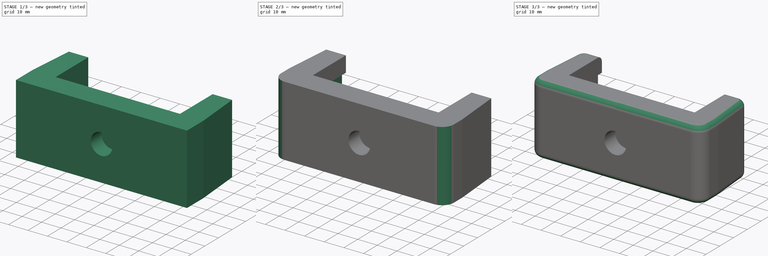
[diagram: build sequence overview — one tinted view per stage of 3, left to right]
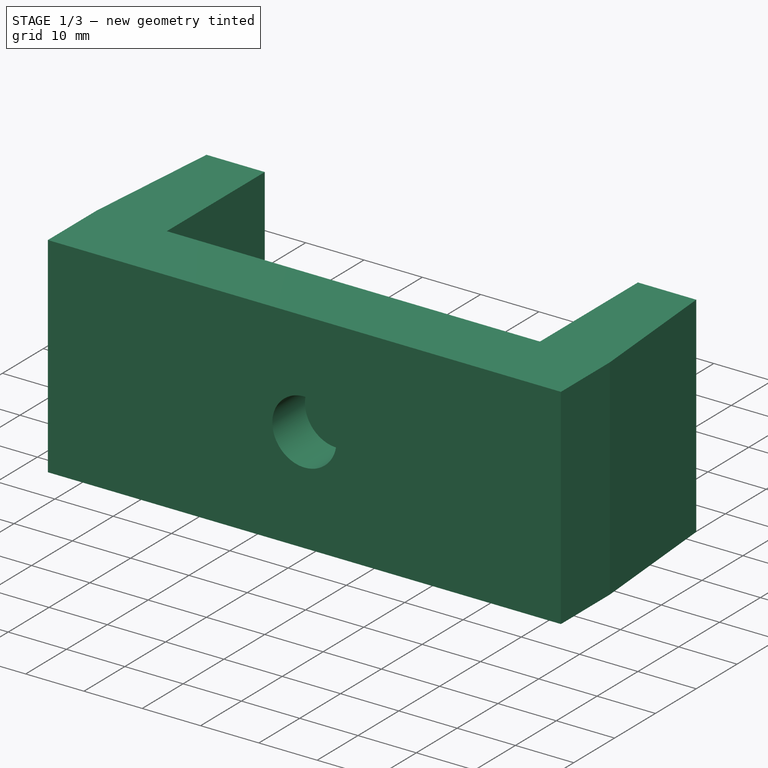
[diagram: stage 1 of 3 — iso view after this stage's code; geometry added in this stage tinted green]
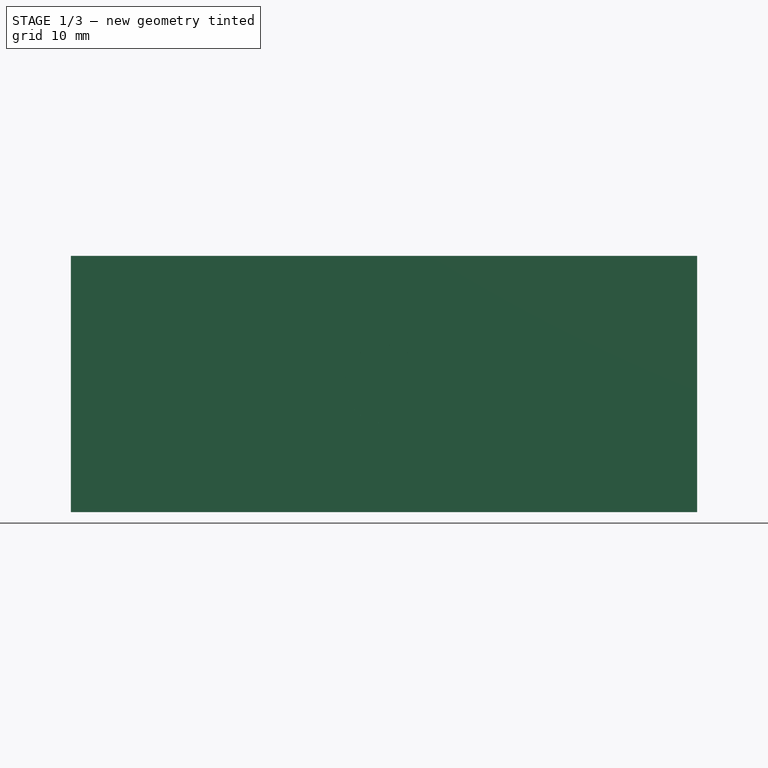
[diagram: stage 1 of 3 — front view after this stage's code; geometry added in this stage tinted green]
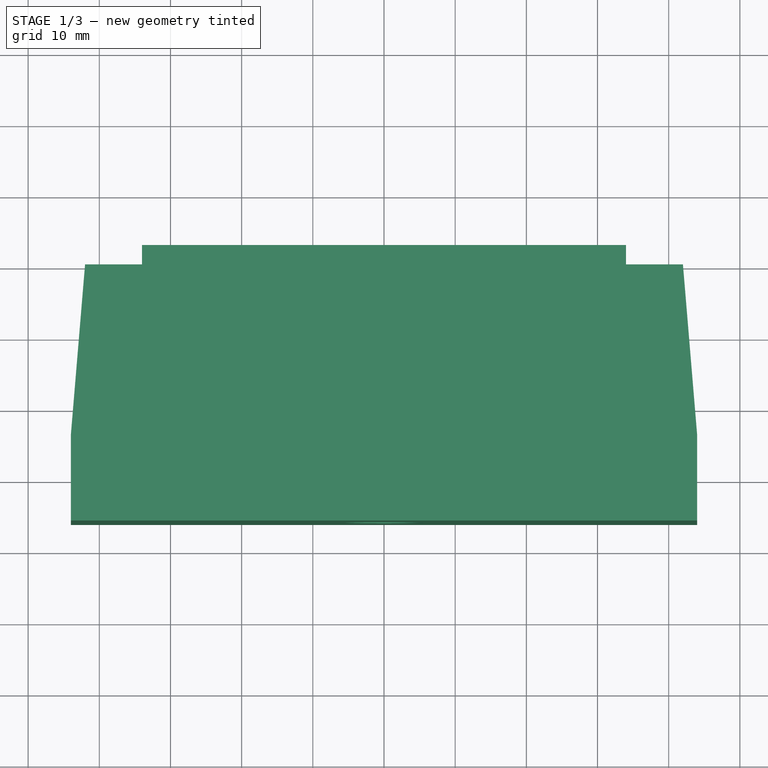
[diagram: stage 1 of 3 — top view after this stage's code; geometry added in this stage tinted green]
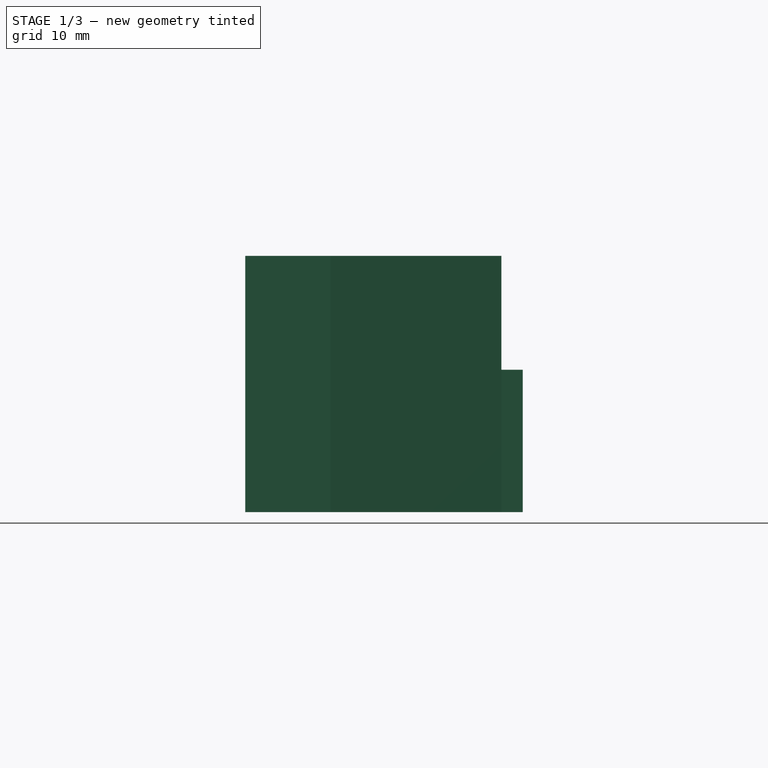
[diagram: stage 1 of 3 — right view after this stage's code; geometry added in this stage tinted green]
FCSTD DOCUMENT  (FreeCAD 0.21R33771 (Git))
Label: Base1
License: All rights reserved
LicenseURL: http://en.wikipedia.org/wiki/All_rights_reserved
objects: PartDesign::Fillet×4, Sketcher::SketchObject×3, PartDesign::Pad×2, PartDesign::Body×2, PartDesign::Pocket×1, PartDesign::Boolean×1
note: 20 computed .brp shape members not serialized (recipe doc carries the construction recipe); baked Part::Feature solids carry a one-line shape summary decoded from their .brp

FEATURE [Sketcher::SketchObject] Sketch
  FullyConstrained = true
  MapMode = 5
  Support = -> [XY_Plane]
  sketch-geometry (16):
    g0: LineSegment StartX=-30 StartY=50 StartZ=0 EndX=30 EndY=50 EndZ=0
    g1: LineSegment StartX=30 StartY=50 StartZ=0 EndX=30 EndY=-20 EndZ=0
    g2: LineSegment StartX=30 StartY=-20 StartZ=0 EndX=-30 EndY=-20 EndZ=0
    g3: LineSegment StartX=-30 StartY=-20 StartZ=0 EndX=-30 EndY=50 EndZ=0
    g4: LineSegment StartX=0 StartY=-24 StartZ=0 EndX=-32 EndY=-24 EndZ=0
    g5: LineSegment StartX=-32 StartY=-24 StartZ=0 EndX=-32 EndY=0 EndZ=0
    g6: LineSegment StartX=-32 StartY=0 StartZ=0 EndX=-42 EndY=0 EndZ=0
    g7: LineSegment StartX=-42 StartY=0 StartZ=0 EndX=-44 EndY=-24 EndZ=0
    g8: LineSegment StartX=-44 StartY=-24 StartZ=0 EndX=-44 EndY=-36 EndZ=0
    g9: LineSegment StartX=-44 StartY=-36 StartZ=0 EndX=0 EndY=-36 EndZ=0
    g10: LineSegment StartX=0 StartY=-24 StartZ=0 EndX=32 EndY=-24 EndZ=0
    g11: LineSegment StartX=32 StartY=-24 StartZ=0 EndX=32 EndY=0 EndZ=0
    g12: LineSegment StartX=32 StartY=0 StartZ=0 EndX=42 EndY=0 EndZ=0
    g13: LineSegment StartX=42 StartY=0 StartZ=0 EndX=44 EndY=-24 EndZ=0
    g14: LineSegment StartX=44 StartY=-24 StartZ=0 EndX=44 EndY=-36 EndZ=0
    g15: LineSegment StartX=44 StartY=-36 StartZ=0 EndX=0 EndY=-36 EndZ=0
  constraints (44):
    c: Coincident(g0,g1)
    c: Coincident(g1,g2)
    c: Coincident(g2,g3)
    c: Coincident(g3,g0)
    c: Horizontal(g2)
    c: Vertical(g1)
    c: Vertical(g3)
    c: Symmetric(g0,g0,g-2)
    c: DistanceY(g-1,g0) = 50
    c: DistanceX(g2,g1) = 60
    c: DistanceY(g2,g-1) = 20
    c: PointOnObject(g4,g-2)
    c: Horizontal(g4)
    c: Coincident(g5,g4)
    c: PointOnObject(g5,g-1)
    c: Vertical(g5)
    c: Coincident(g6,g5)
    c: PointOnObject(g6,g-1)
    c: Vertical(g8)
    c: PointOnObject(g9,g-2)
    c: Horizontal(g9)
    c: DistanceX(g6,g5) = 10
    c: Horizontal(g7,g4)
    c: Coincident(g8,g7)
    c: Coincident(g8,g9)
    c: DistanceX(g7,g4) = 12
    c: DistanceY(g9,g4) = 12
    c: DistanceY(g4,g-1) = 24
    c: Coincident(g6,g7)
    c: DistanceX(g5,g-1) = 32
    c: Horizontal(g10)
    c: Coincident(g11,g10)
    c: Vertical(g11)
    c: Coincident(g12,g11)
    c: Vertical(g14)
    c: Horizontal(g15)
    c: Coincident(g14,g13)
    c: Coincident(g14,g15)
    c: Coincident(g12,g13)
    c: Coincident(g10,g4)
    c: Coincident(g15,g9)
    c: Symmetric(g11,g5,g-2)
    c: Symmetric(g12,g6,g-2)
    c: Symmetric(g13,g7,g-2)
FEATURE [PartDesign::Pad] Pad
  Direction = (0,0,1)
  Length = 36
  Length2 = 10
  Profile = -> Sketch
  ReferenceAxis = -> Sketch [N_Axis]
  Type = 0
FEATURE [Sketcher::SketchObject] Sketch001
  FullyConstrained = true
  MapMode = 5
  Placement = pos=(0,-36,0) rot=(1,0,0;1.5708rad)
  Support = -> [Pad]
  sketch-geometry (1):
    g0: Circle CenterX=0 CenterY=18 CenterZ=0 NormalX=0 NormalY=0 NormalZ=1 AngleXU=0 Radius=5.5
  constraints (3):
    c: PointOnObject(g0,g-2)
    c: Radius(g0) = 5.5
    c: DistanceY(g0) = 18
FEATURE [PartDesign::Pocket] Pocket
  BaseFeature = -> Pad
  Direction = (0,1,-2e-16)
  Length = 8
  Length2 = 5
  Profile = -> Sketch001
  ReferenceAxis = -> Sketch001 [N_Axis]
  Type = 0
FEATURE [Sketcher::SketchObject] Sketch002
  FullyConstrained = true
  MapMode = 5
  Support = -> [XY_Plane001]
  sketch-geometry (4):
    g0: LineSegment StartX=-34 StartY=3 StartZ=0 EndX=34 EndY=3 EndZ=0
    g1: LineSegment StartX=34 StartY=3 StartZ=0 EndX=34 EndY=-27 EndZ=0
    g2: LineSegment StartX=34 StartY=-27 StartZ=0 EndX=-34 EndY=-27 EndZ=0
    g3: LineSegment StartX=-34 StartY=-27 StartZ=0 EndX=-34 EndY=3 EndZ=0
  constraints (11):
    c: Coincident(g0,g1)
    c: Coincident(g1,g2)
    c: Coincident(g2,g3)
    c: Coincident(g3,g0)
    c: Horizontal(g2)
    c: Vertical(g1)
    c: Vertical(g3)
    c: DistanceX(g2,g1) = 68
    c: DistanceY(g1,g0) = 30
    c: DistanceY(g2,g-1) = 27
    c: Symmetric(g0,g0,g-2)
FEATURE [PartDesign::Pad] Pad001
  Direction = (0,0,1)
  Length = 20
  Length2 = 10
  Profile = -> Sketch002
  ReferenceAxis = -> Sketch002 [N_Axis]
  Type = 0
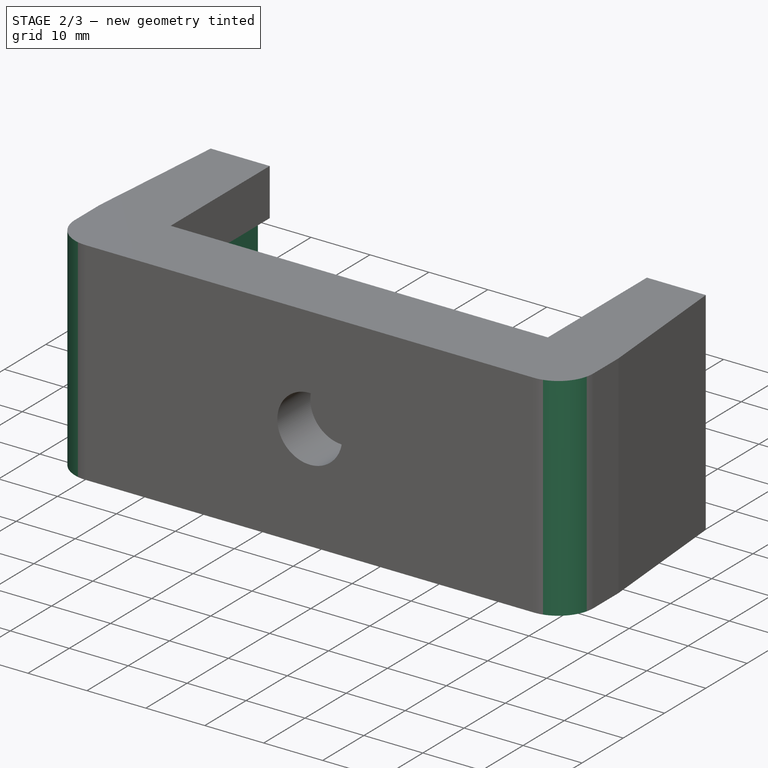
[diagram: stage 2 of 3 — iso view after this stage's code; geometry added in this stage tinted green]
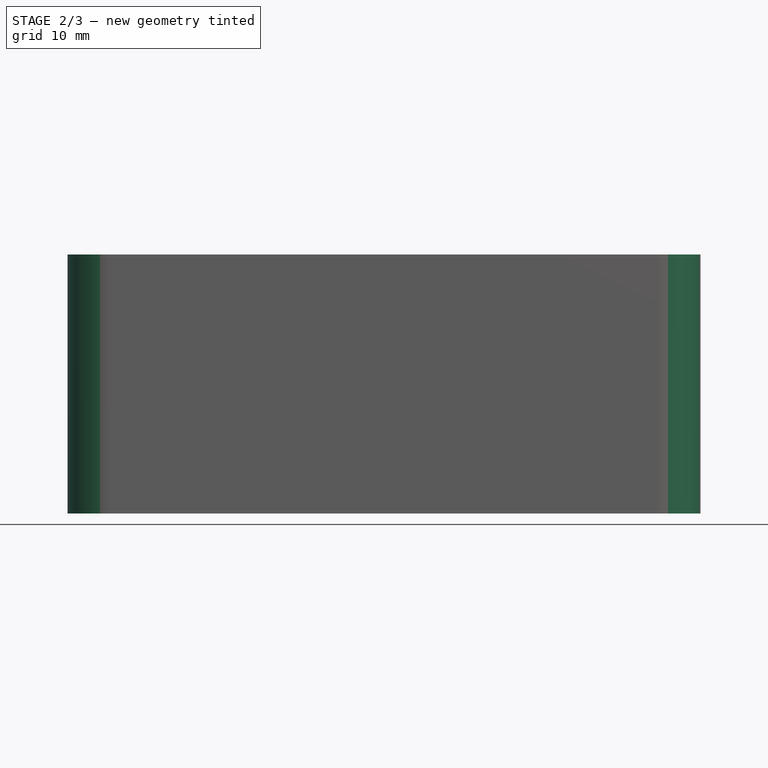
[diagram: stage 2 of 3 — front view after this stage's code; geometry added in this stage tinted green]
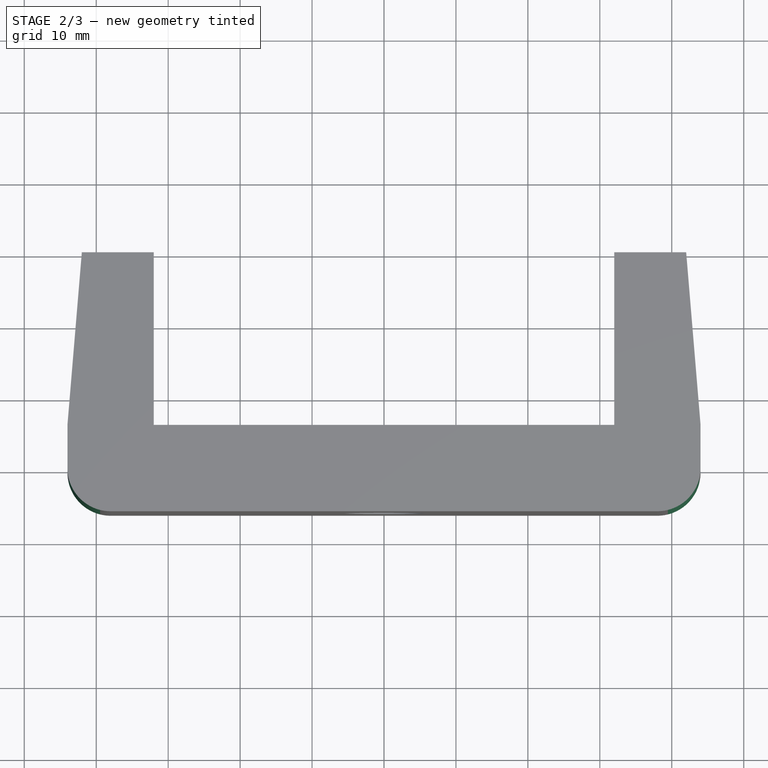
[diagram: stage 2 of 3 — top view after this stage's code; geometry added in this stage tinted green]
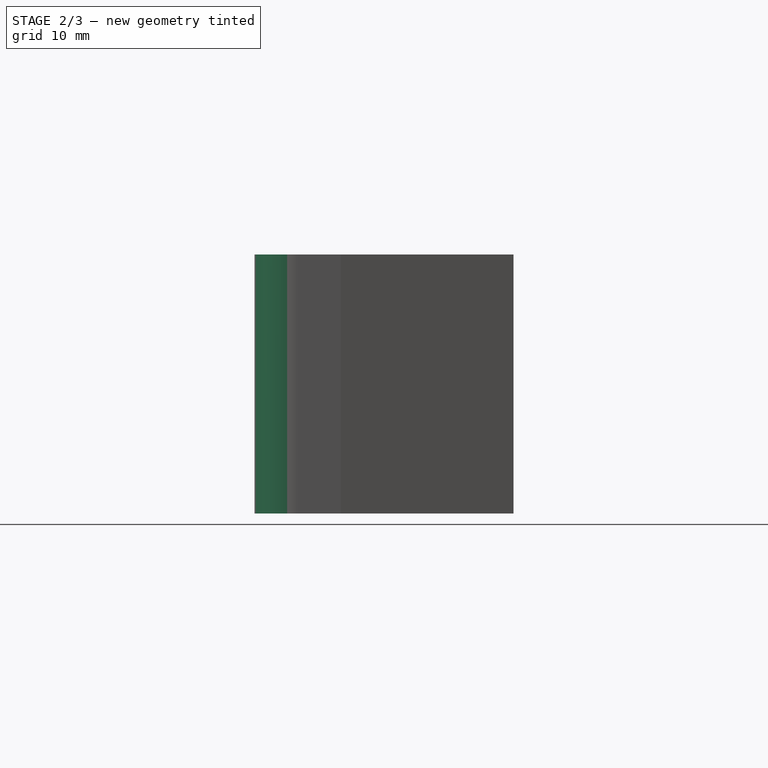
[diagram: stage 2 of 3 — right view after this stage's code; geometry added in this stage tinted green]
FEATURE [PartDesign::Body] Body001
  Group = -> [Sketch002,Pad001]
  Origin = -> Origin001
  Placement = pos=(0,1,8) rot=(0,0,1;0rad)
  Tip = -> Pad001
FEATURE [PartDesign::Boolean] Boolean
  BaseFeature = -> Pocket
  Group = -> [Body001]
  Type = 1
FEATURE [PartDesign::Fillet] Fillet  label="Fillet_HE5"
  Base = -> Boolean [Edge42,Edge33]
  BaseFeature = -> Boolean
  Radius = 6
  SupportTransform = false
  UseAllEdges = false
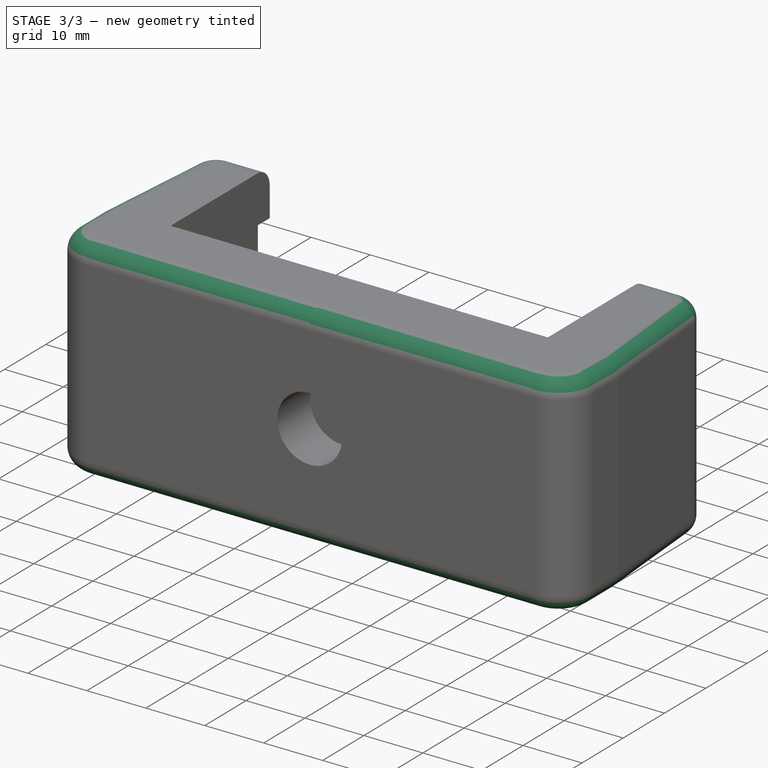
[diagram: stage 3 of 3 — iso view after this stage's code; geometry added in this stage tinted green]
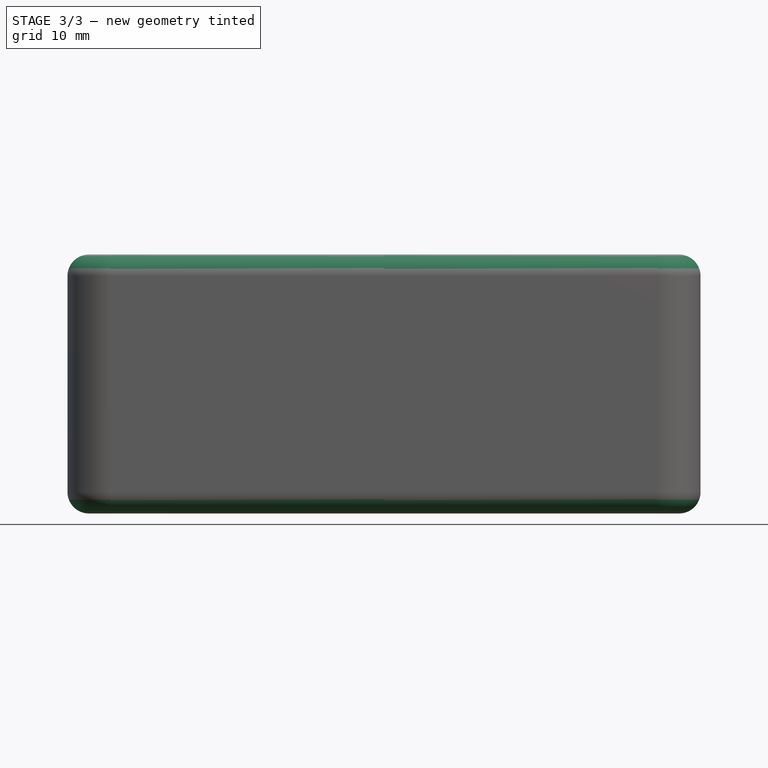
[diagram: stage 3 of 3 — front view after this stage's code; geometry added in this stage tinted green]
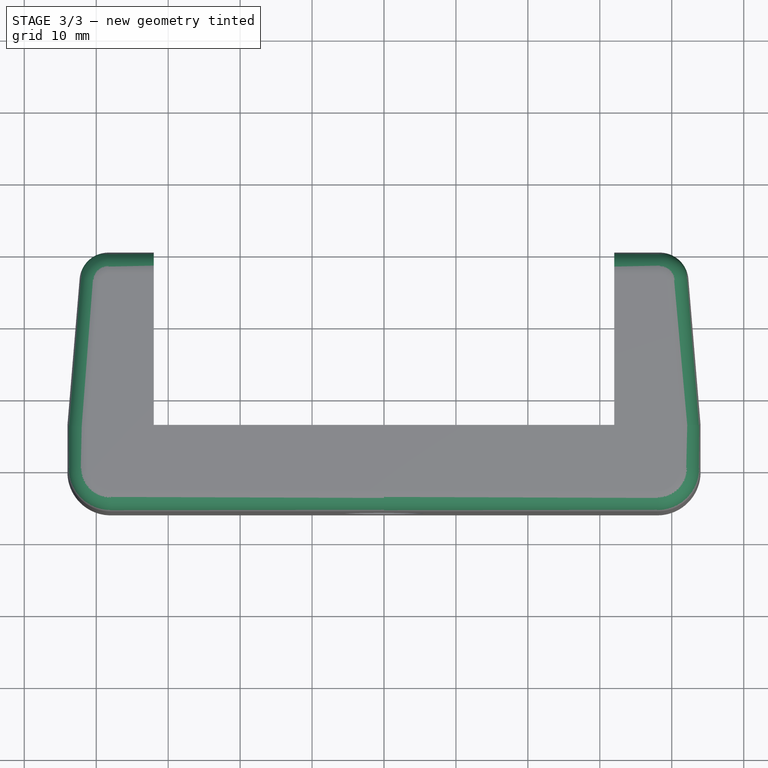
[diagram: stage 3 of 3 — top view after this stage's code; geometry added in this stage tinted green]
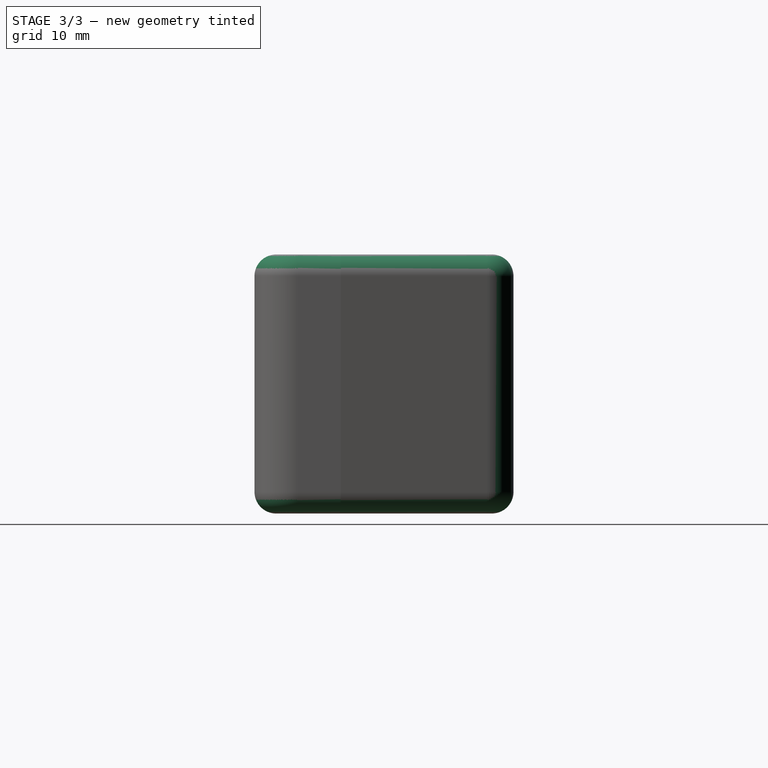
[diagram: stage 3 of 3 — right view after this stage's code; geometry added in this stage tinted green]
FEATURE [PartDesign::Fillet] Fillet001  label="Fillet_HE4"
  Base = -> Fillet [Edge20,Edge46]
  BaseFeature = -> Fillet
  Radius = 4
  SupportTransform = false
  UseAllEdges = false
FEATURE [PartDesign::Fillet] Fillet002
  Base = -> Fillet001 [Edge25,Edge21,Edge19,Edge23,Edge31,Edge35,Edge41,Edge47,Edge51,Edge59,Edge60,Edge53]
  BaseFeature = -> Fillet001
  Radius = 3
  SupportTransform = false
  UseAllEdges = false
FEATURE [PartDesign::Fillet] Fillet003
  Base = -> Fillet002 [Edge22,Edge24,Edge23,Edge21,Edge19,Edge17,Edge15,Edge13,Edge11,Edge3,Edge6,Edge12]
  BaseFeature = -> Fillet002
  Radius = 3
  SupportTransform = false
  UseAllEdges = false
FEATURE [PartDesign::Body] Body
  Group = -> [Sketch,Pad,Sketch001,Pocket,Boolean,Fillet,Fillet001,Fillet002,Fillet003]
  Origin = -> Origin
  Tip = -> Fillet003
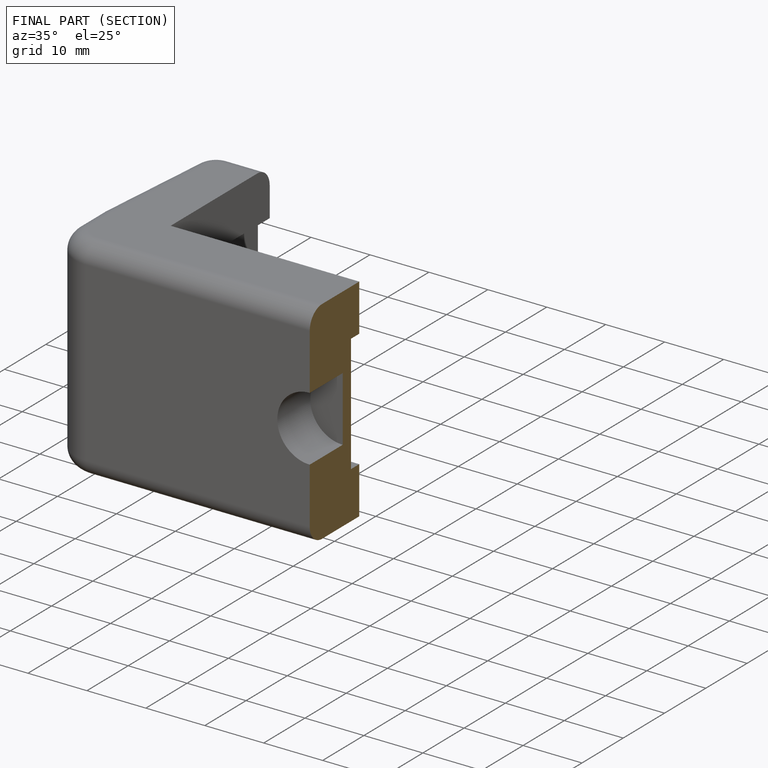
[diagram: finished part — half-section view (interior)]
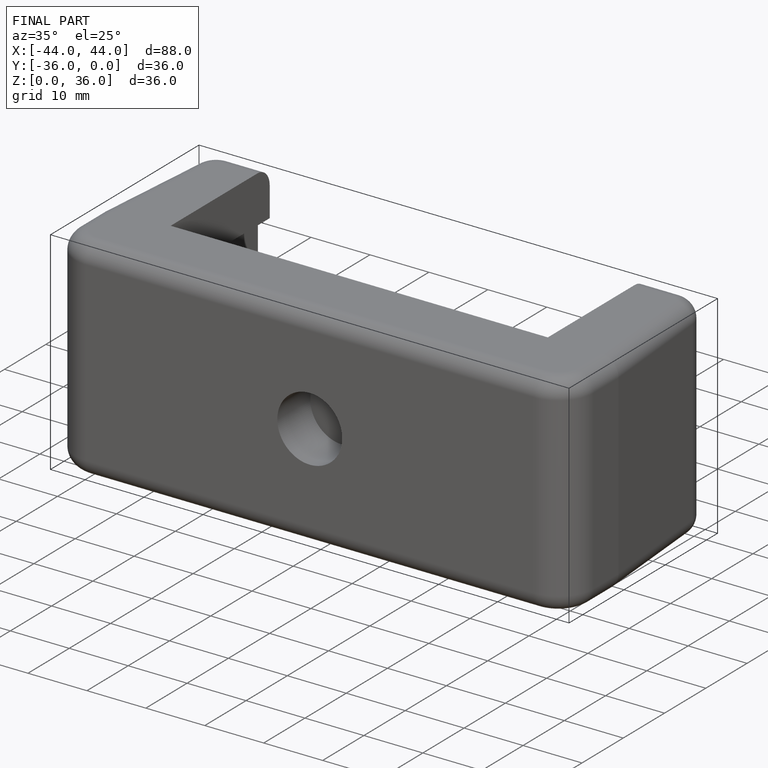
[diagram: finished part — iso view with bounding-box wireframe]
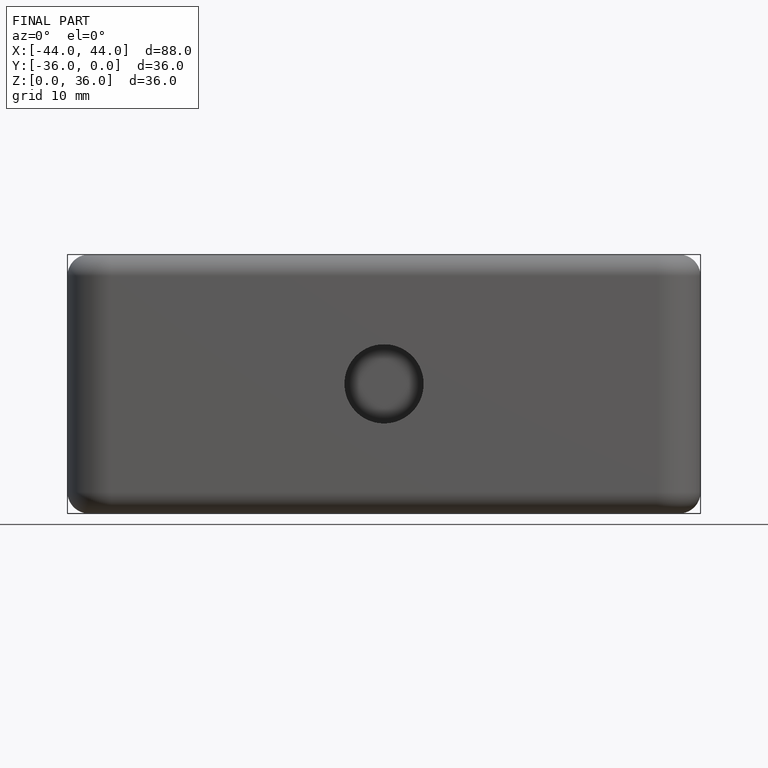
[diagram: finished part — front view with bounding-box wireframe]
